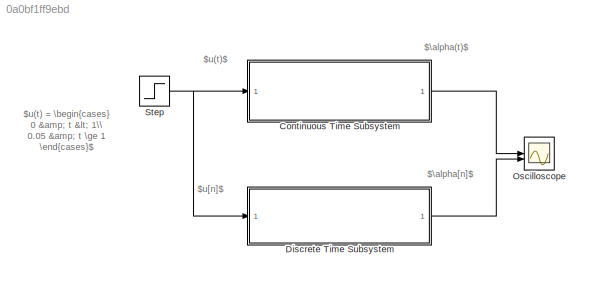
MODEL slx_0a0bf1ff9ebd
KIND model
CONFIG AbsTol = auto
CONFIG EnableMultiTasking = off
CONFIG FixedStep = auto
CONFIG MaxStep = 1e-4
CONFIG MinStep = auto
CONFIG RelTol = 1e-3
CONFIG SampleTimeConstraint = Unconstrained
CONFIG SolverName = VariableStepAuto
CONFIG StartTime = 0.0
CONFIG StopTime = 8.0
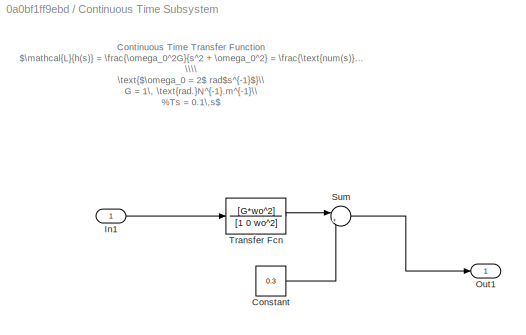
BLOCK [SubSystem] Continuous Time Subsystem
BLOCK [Constant] Continuous Time Subsystem/Constant
  Value = 0.3
BLOCK [Inport] Continuous Time Subsystem/In1
BLOCK [Outport] Continuous Time Subsystem/Out1
BLOCK [Sum] Continuous Time Subsystem/Sum
  Inputs = |++
BLOCK [TransferFcn] Continuous Time Subsystem/Transfer Fcn
  Denominator = [1 0 wo^2]
  Numerator = [G*wo^2]
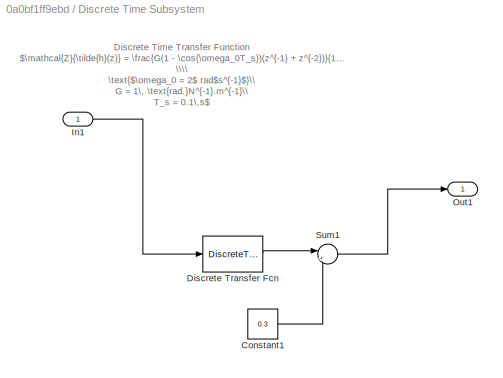
BLOCK [SubSystem] Discrete Time Subsystem
BLOCK [Constant] Discrete Time Subsystem/Constant1
  Value = 0.3
BLOCK [DiscreteTransferFcn] Discrete Time Subsystem/Discrete Transfer Fcn
  CloseFcn = dspblkCoreblockFVToolHelper(gcbh,'close');
  CopyFcn = dspblkCoreblockFVToolHelper(gcbh,'copy');
  DeleteFcn = dspblkCoreblockFVToolHelper(gcbh,'close');
  Denominator = dend
  InputPortMap = u0
  LoadFcn = dspblkCoreblockFVToolHelper(gcbh,'load');
  ModelCloseFcn = dspblkCoreblockFVToolHelper(gcbh,'close');
  Numerator = numd
  PostSaveFcn = dspblkCoreblockFVToolHelper(gcbh,'postsave');
  PreSaveFcn = dspblkCoreblockFVToolHelper(gcbh,'presave');
BLOCK [Inport] Discrete Time Subsystem/In1
BLOCK [Outport] Discrete Time Subsystem/Out1
BLOCK [Sum] Discrete Time Subsystem/Sum1
  Inputs = |++
  NameLocation = top
BLOCK [Scope] Oscilloscope
  Floating = off
  NumInputPorts = 2
  ScopeSpecificationString = Simulink.scopes.TimeScopeBlockCfg('CurrentConfiguration', extmgr.ConfigurationSet(extmgr.Configuration('Core','General UI',true),extmgr.Configuration('Core','Source UI',true),extmgr.Configuration('Sources','WiredSimulink',true),extmgr.Configuration('Visuals','Time Domain',true,'SerializedDisplays',{struct('MinYLimReal','0.2875','MaxYLimReal','0.4125','YLabelReal','\alpha(t), \alpha[n]','MinYLimMag...<+1712ch>
BLOCK [Step] Step
  After = 0.05
  SampleTime = 0.1
ANNOTATION (root): $\alpha(t)$
ANNOTATION (root): $\alpha[n]$
ANNOTATION (root): $u(t) = \begin{cases} 0 & t < 1\\ 0.05 & t \ge 1 \end{cases}$
ANNOTATION (root): $u(t)$
ANNOTATION (root): $u[n]$
ANNOTATION Continuous Time Subsystem: Continuous Time Transfer Function $\mathcal{L}{h(s)} = \frac{\omega_0^2G}{s^2 + \omega_0^2} = \frac{\text{num(s)}}{\text{den(s)}} \\\\ \text{$\omega_0 = 2$ rad$s^{-1}$}\\ G = 1\, \text{rad.}N^{-1}.m^{-1}\\ %Ts = 0.1\,s$
ANNOTATION Discrete Time Subsystem: Discrete Time Transfer Function $\mathcal{Z}{\tilde{h}(z)} = \frac{G(1 - \cos{\omega_0T_s})(z^{-1} + z^{-2})}{1 - 2\cos{\omega_0 T_s}\,z^{-1} + z^{-2}} = \frac{Y(z)}{U(z)} \\\\ \text{$\omega_0 = 2$ rad$s^{-1}$}\\ G = 1\, \text{rad.}N^{-1}.m^{-1}\\ T_s = 0.1\,s$
LINE Continuous Time Subsystem/Constant:1 -> Continuous Time Subsystem/Sum:2
LINE Continuous Time Subsystem/In1:1 -> Continuous Time Subsystem/Transfer Fcn:1
LINE Continuous Time Subsystem/Sum:1 -> Continuous Time Subsystem/Out1:1
LINE Continuous Time Subsystem/Transfer Fcn:1 -> Continuous Time Subsystem/Sum:1
LINE Continuous Time Subsystem:1 -> Oscilloscope:1
LINE Discrete Time Subsystem/Constant1:1 -> Discrete Time Subsystem/Sum1:2
LINE Discrete Time Subsystem/Discrete Transfer Fcn:1 -> Discrete Time Subsystem/Sum1:1
LINE Discrete Time Subsystem/In1:1 -> Discrete Time Subsystem/Discrete Transfer Fcn:1
LINE Discrete Time Subsystem/Sum1:1 -> Discrete Time Subsystem/Out1:1
LINE Discrete Time Subsystem:1 -> Oscilloscope:2
NET Step:1 -> Continuous Time Subsystem:1, Discrete Time Subsystem:1
note: NET lines group one-source signal fan-out (src -> all destinations, sorted); 1:1 wires keep LINE
